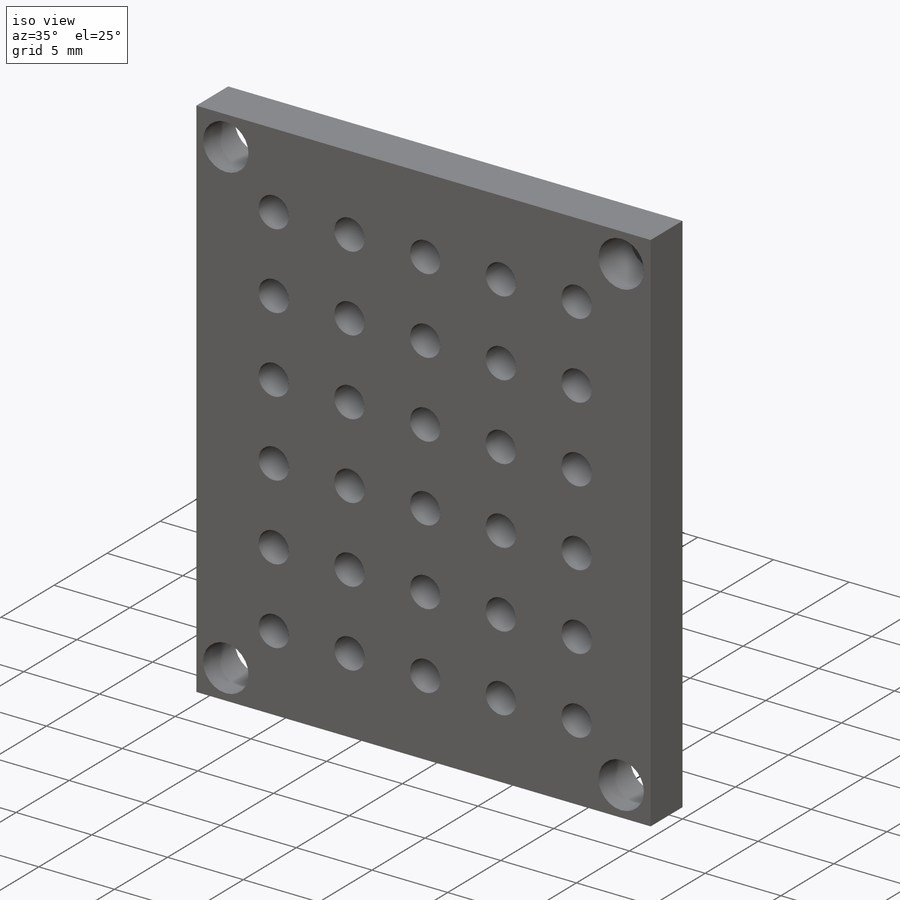
[diagram: iso view]
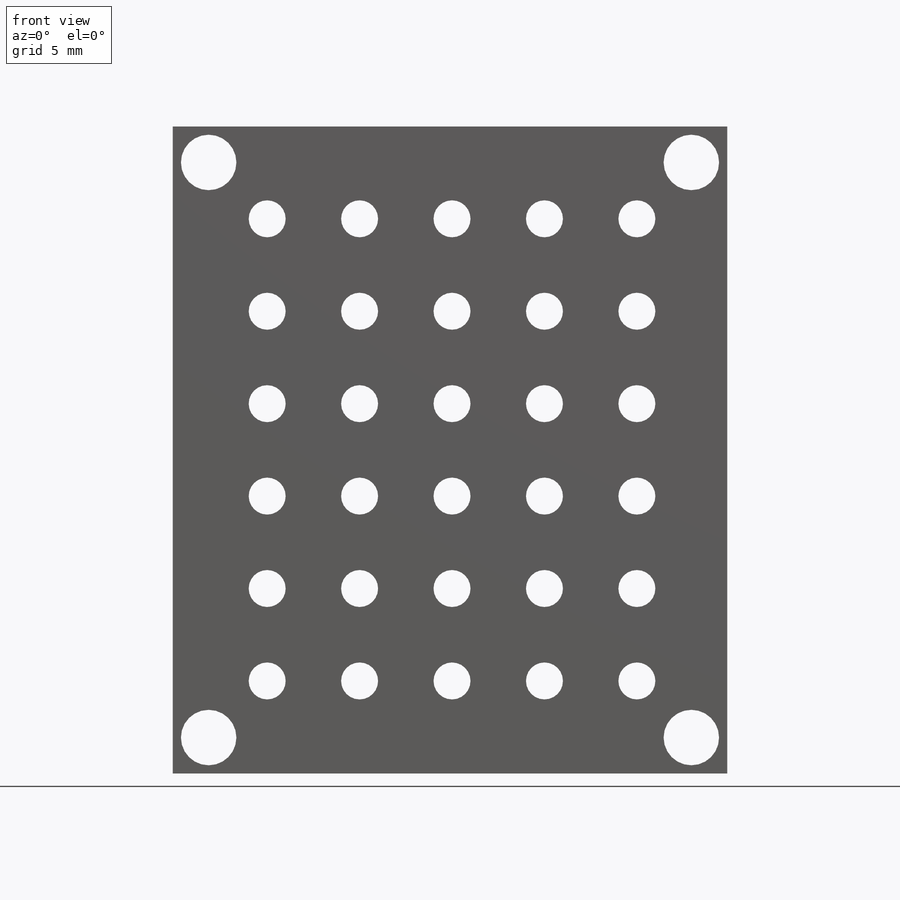
[diagram: front view]
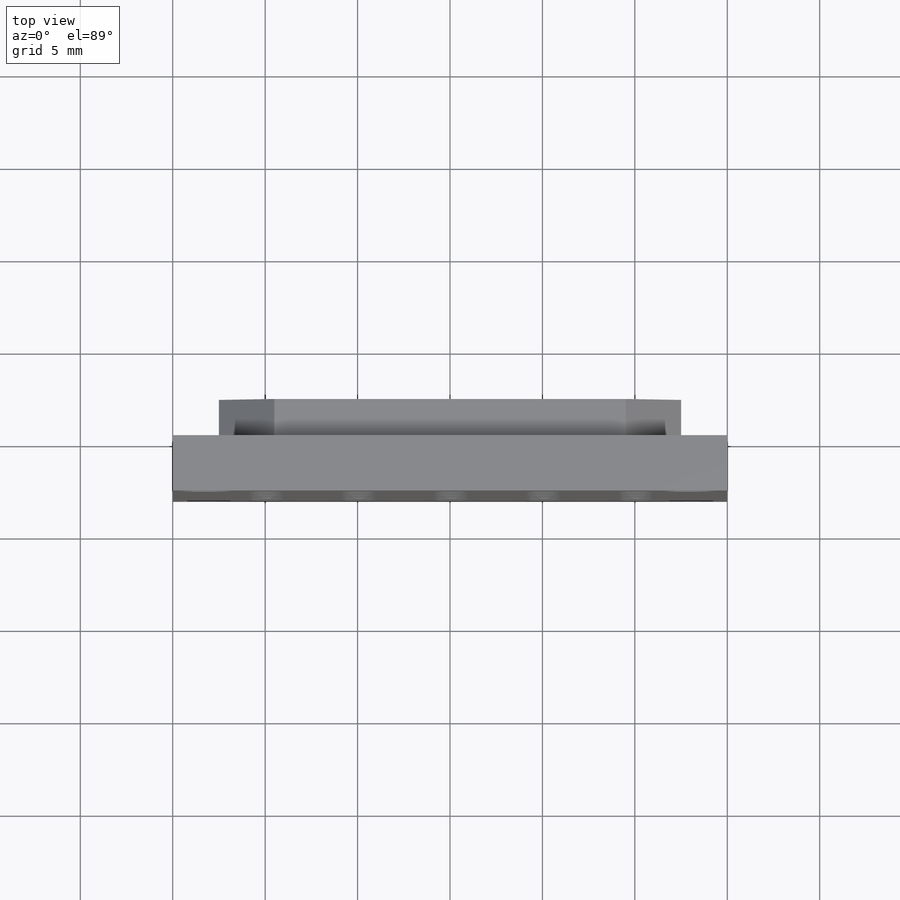
[diagram: top view]
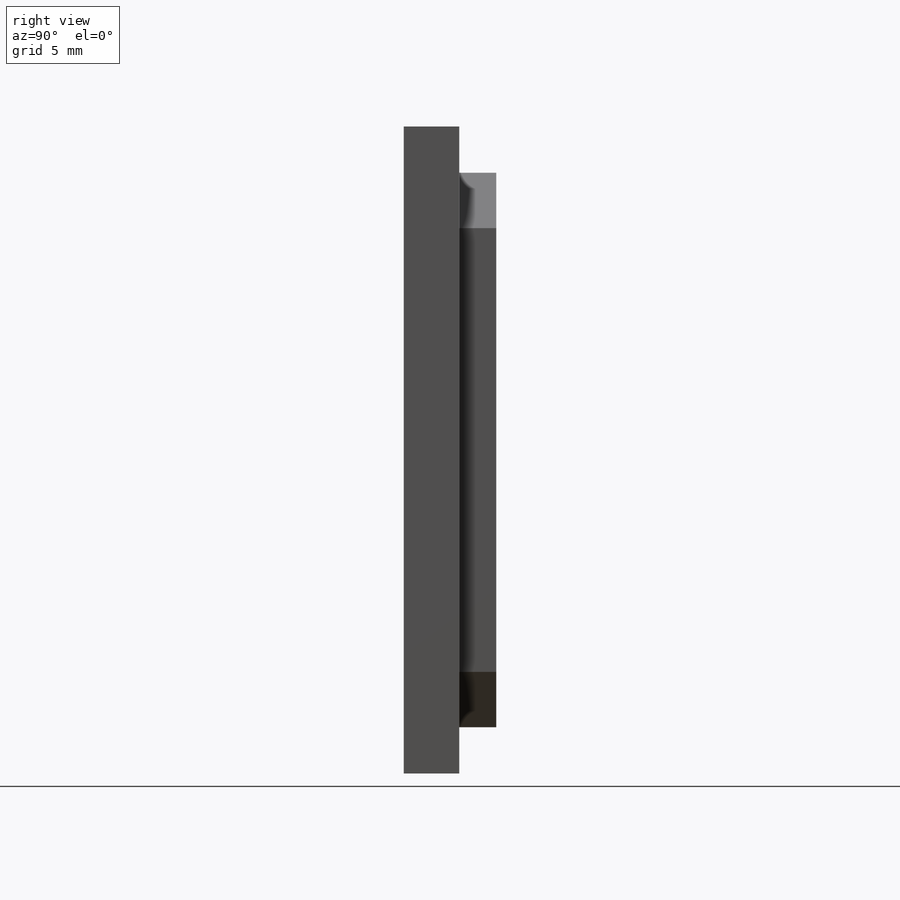
[diagram: right view]
SOLIDWORKS PART (.sldprt)
format: sldprt  version: not decoded by parser v0  size: 305,664 bytes
history: native  units: mm
features: sketch x5, plane x3, extrude x2, cut_extrude x2, material x1 (+9 scaffold rows collapsed)
feature tree (22):
  scaffold x9  (default folders/planes/origin — collapsed)
  material  "Matériau <non spécifié>"
  plane  "Plan de face"
  plane  "Plan de dessus"
  plane  "Plan de droite"
  sketch  "Esquisse2"  dims[c1.D1=2.0mm c1.D2=2.0mm c1.D3=2.0mm c1.D4=3.0mm c1.D5=2.0mm c1.D6=2.0mm c2.D5=2.0mm c2.D6=3.0mm c2.D7=3.0mm c2.D8=3.0mm c2.D9=3.0mm c2.D10=3.0mm c2.D11=3.0mm c2.D12=3.0mm c2.D1=2.0mm c2.D2=2.0mm c2.D3=2.0mm c2.D4=2.0mm c3.D5=3.0mm c3.D6=3.0mm c3.D7=3.0mm c3.D8=3.0mm c3.D9=3.0mm c3.D10=3.0mm c3.D11=3.0mm c3.D12=3.0mm c3.D2=13.0mm c3.D3=15.5mm c3.D4=~15.506243mm c4.D4=90.0deg c5.D4=15.5mm c5.D13=~15.529545mm c6.D13=90.0deg c7.D13=26.0mm]
  sketch  "Esquisse8"  dims[c1.D1=20.0mm c1.D2=25.0mm c1.D3=20.0mm c1.D4=25.0mm c1.D5=3.0mm c1.D6=3.0mm c1.D7=3.0mm c1.D8=3.0mm c1.D9=3.0mm c1.D10=3.0mm c1.D11=3.0mm c1.D12=26.0mm c2.D1=26.0mm c2.D2=31.0mm c2.D3=3.0mm c2.D4=3.0mm c2.D5=3.0mm c2.D6=3.0mm c2.D7=25.0mm c3.D1=0.5mm c3.D2=0.5mm c3.D5=0.5mm c3.D6=24.0mm]
  extrude  "Boss.-Extru.4"  Depth=2mm
  sketch  "Esquisse9"  dims[D1=30.0mm D2=35.0mm]
  extrude  "Boss.-Extru.5"  Depth=3mm
  sketch  "Esquisse7"  dims[c1.D1=3.0mm c1.D3=2.0mm c1.D2=2.75mm c1.D4=2.75mm c1.D5=2.75mm c2.D3=2.75mm]
  cut_extrude  "Enlèv. mat.-Extru.8"  [1 undecoded]
  sketch  "Esquisse10"  dims[D1=2.0mm]
  cut_extrude  "Enlèv. mat.-Extru.9"  [1 undecoded]
decode coverage: 7 of 9 modeling features carry decoded parameters
note: ~ marks probable driven/reference dimensions
note: 2 parameter values undecoded
note: suppression state not decoded; provenance and decode notes live in map.json
